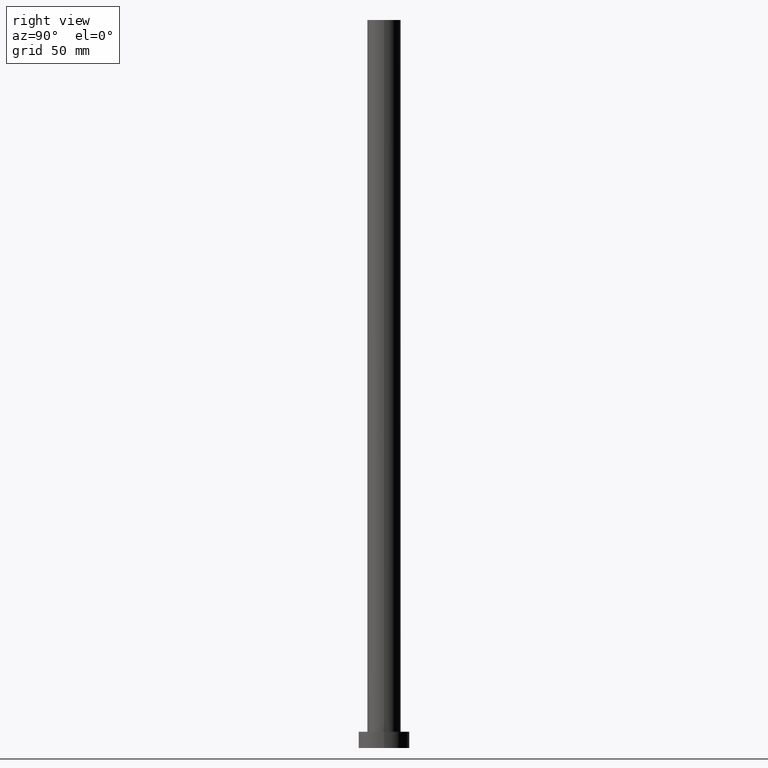
[diagram: clean part render]
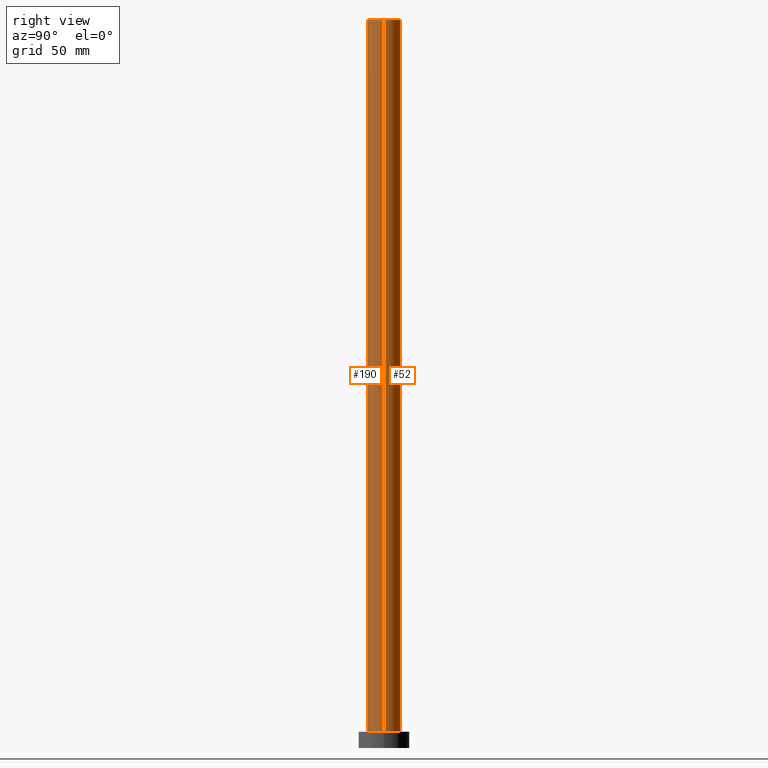
[diagram: same view with one multi-face feature highlighted, each face labeled with its STEP entity id]
A machine part, right view. The highlighted faces form ONE feature: a constant-radius fillet chain: 2 tangent blend faces with common blend radius 7.25 mm. The faces share edges in the B-rep.
Their STEP definitions:
[1] entity #190 (Cylinder):
#2 = DIRECTION ( 'NONE',  ( 1.000000000000000000, 0.000000000000000000, 0.000000000000000000 ) ) ;
#11 = CARTESIAN_POINT ( 'NONE',  ( 0.000000000000000000, 0.000000000000000000, 315.0000000000000000 ) ) ;
#15 = DIRECTION ( 'NONE',  ( -1.000000000000000000, 0.000000000000000000, 0.000000000000000000 ) ) ;
#19 = EDGE_LOOP ( 'NONE', ( #85, #180, #29, #255 ) ) ;
#21 = CARTESIAN_POINT ( 'NONE',  ( 0.000000000000000000, 0.000000000000000000, 7.000000000000000000 ) ) ;
#29 = ORIENTED_EDGE ( 'NONE', *, *, #237, .T. ) ;
#34 = CARTESIAN_POINT ( 'NONE',  ( 0.000000000000000000, 0.000000000000000000, 315.0000000000000000 ) ) ;
#50 = CIRCLE ( 'NONE', #140, 7.250000000000000000 ) ;
#51 = FACE_OUTER_BOUND ( 'NONE', #19, .T. ) ;
#55 = CARTESIAN_POINT ( 'NONE',  ( -7.250000000000000000, 0.000000000000000000, 7.000000000000000000 ) ) ;
#56 = DIRECTION ( 'NONE',  ( -0.000000000000000000, -0.000000000000000000, -1.000000000000000000 ) ) ;
#62 = CARTESIAN_POINT ( 'NONE',  ( -7.250000000000000000, 0.000000000000000000, 315.0000000000000000 ) ) ;
#68 = VERTEX_POINT ( 'NONE', #62 ) ;
#70 = CARTESIAN_POINT ( 'NONE',  ( 7.250000000000000000, 8.878689293818310074E-16, 7.000000000000000000 ) ) ;
#72 = DIRECTION ( 'NONE',  ( 1.000000000000000000, 0.000000000000000000, 0.000000000000000000 ) ) ;
#75 = DIRECTION ( 'NONE',  ( -0.000000000000000000, -0.000000000000000000, -1.000000000000000000 ) ) ;
#80 = EDGE_CURVE ( 'NONE', #216, #223, #234, .T. ) ;
#85 = ORIENTED_EDGE ( 'NONE', *, *, #115, .F. ) ;
#94 = CARTESIAN_POINT ( 'NONE',  ( 7.250000000000000000, 8.878689293818310074E-16, 315.0000000000000000 ) ) ;
#113 = VECTOR ( 'NONE', #56, 1000.000000000000000 ) ;
#115 = EDGE_CURVE ( 'NONE', #238, #223, #184, .T. ) ;
#125 = EDGE_CURVE ( 'NONE', #68, #238, #50, .T. ) ;
#135 = LINE ( 'NONE', #189, #113 ) ;
#140 = AXIS2_PLACEMENT_3D ( 'NONE', #11, #246, #72 ) ;
#160 = AXIS2_PLACEMENT_3D ( 'NONE', #34, #226, #15 ) ;
#180 = ORIENTED_EDGE ( 'NONE', *, *, #125, .F. ) ;
#181 = DIRECTION ( 'NONE',  ( 0.000000000000000000, 0.000000000000000000, 1.000000000000000000 ) ) ;
#184 = LINE ( 'NONE', #227, #230 ) ;
#189 = CARTESIAN_POINT ( 'NONE',  ( -7.250000000000000000, 0.000000000000000000, 315.0000000000000000 ) ) ;
#190 = ADVANCED_FACE ( 'NONE', ( #51 ), #192, .T. ) ;
#192 = CYLINDRICAL_SURFACE ( 'NONE', #160, 7.250000000000000000 ) ;
#216 = VERTEX_POINT ( 'NONE', #55 ) ;
#223 = VERTEX_POINT ( 'NONE', #70 ) ;
#226 = DIRECTION ( 'NONE',  ( -0.000000000000000000, -0.000000000000000000, -1.000000000000000000 ) ) ;
#227 = CARTESIAN_POINT ( 'NONE',  ( 7.250000000000000000, 8.878689293818310074E-16, 315.0000000000000000 ) ) ;
#230 = VECTOR ( 'NONE', #75, 1000.000000000000000 ) ;
#234 = CIRCLE ( 'NONE', #253, 7.250000000000000000 ) ;
#237 = EDGE_CURVE ( 'NONE', #68, #216, #135, .T. ) ;
#238 = VERTEX_POINT ( 'NONE', #94 ) ;
#246 = DIRECTION ( 'NONE',  ( 0.000000000000000000, 0.000000000000000000, 1.000000000000000000 ) ) ;
#253 = AXIS2_PLACEMENT_3D ( 'NONE', #21, #181, #2 ) ;
#255 = ORIENTED_EDGE ( 'NONE', *, *, #80, .T. ) ;
[2] entity #52 (Cylinder):
#4 = EDGE_LOOP ( 'NONE', ( #241, #104, #87, #199 ) ) ;
#14 = DIRECTION ( 'NONE',  ( 0.000000000000000000, 0.000000000000000000, 1.000000000000000000 ) ) ;
#24 = DIRECTION ( 'NONE',  ( -1.000000000000000000, 0.000000000000000000, 0.000000000000000000 ) ) ;
#30 = FACE_OUTER_BOUND ( 'NONE', #4, .T. ) ;
#32 = DIRECTION ( 'NONE',  ( 1.000000000000000000, 0.000000000000000000, 0.000000000000000000 ) ) ;
#44 = CARTESIAN_POINT ( 'NONE',  ( 0.000000000000000000, 0.000000000000000000, 315.0000000000000000 ) ) ;
#52 = ADVANCED_FACE ( 'NONE', ( #30 ), #129, .T. ) ;
#53 = DIRECTION ( 'NONE',  ( 1.000000000000000000, 0.000000000000000000, 0.000000000000000000 ) ) ;
#55 = CARTESIAN_POINT ( 'NONE',  ( -7.250000000000000000, 0.000000000000000000, 7.000000000000000000 ) ) ;
#56 = DIRECTION ( 'NONE',  ( -0.000000000000000000, -0.000000000000000000, -1.000000000000000000 ) ) ;
#62 = CARTESIAN_POINT ( 'NONE',  ( -7.250000000000000000, 0.000000000000000000, 315.0000000000000000 ) ) ;
#66 = CIRCLE ( 'NONE', #123, 7.250000000000000000 ) ;
#68 = VERTEX_POINT ( 'NONE', #62 ) ;
#69 = CARTESIAN_POINT ( 'NONE',  ( 0.000000000000000000, 0.000000000000000000, 7.000000000000000000 ) ) ;
#70 = CARTESIAN_POINT ( 'NONE',  ( 7.250000000000000000, 8.878689293818310074E-16, 7.000000000000000000 ) ) ;
#75 = DIRECTION ( 'NONE',  ( -0.000000000000000000, -0.000000000000000000, -1.000000000000000000 ) ) ;
#87 = ORIENTED_EDGE ( 'NONE', *, *, #134, .T. ) ;
#94 = CARTESIAN_POINT ( 'NONE',  ( 7.250000000000000000, 8.878689293818310074E-16, 315.0000000000000000 ) ) ;
#95 = AXIS2_PLACEMENT_3D ( 'NONE', #171, #114, #32 ) ;
#104 = ORIENTED_EDGE ( 'NONE', *, *, #115, .T. ) ;
#113 = VECTOR ( 'NONE', #56, 1000.000000000000000 ) ;
#114 = DIRECTION ( 'NONE',  ( 0.000000000000000000, 0.000000000000000000, 1.000000000000000000 ) ) ;
#115 = EDGE_CURVE ( 'NONE', #238, #223, #184, .T. ) ;
#123 = AXIS2_PLACEMENT_3D ( 'NONE', #69, #14, #53 ) ;
#129 = CYLINDRICAL_SURFACE ( 'NONE', #214, 7.250000000000000000 ) ;
#134 = EDGE_CURVE ( 'NONE', #223, #216, #66, .T. ) ;
#135 = LINE ( 'NONE', #189, #113 ) ;
#155 = CIRCLE ( 'NONE', #95, 7.250000000000000000 ) ;
#171 = CARTESIAN_POINT ( 'NONE',  ( 0.000000000000000000, 0.000000000000000000, 315.0000000000000000 ) ) ;
#184 = LINE ( 'NONE', #227, #230 ) ;
#189 = CARTESIAN_POINT ( 'NONE',  ( -7.250000000000000000, 0.000000000000000000, 315.0000000000000000 ) ) ;
#199 = ORIENTED_EDGE ( 'NONE', *, *, #237, .F. ) ;
#211 = EDGE_CURVE ( 'NONE', #238, #68, #155, .T. ) ;
#214 = AXIS2_PLACEMENT_3D ( 'NONE', #44, #221, #24 ) ;
#216 = VERTEX_POINT ( 'NONE', #55 ) ;
#221 = DIRECTION ( 'NONE',  ( -0.000000000000000000, -0.000000000000000000, -1.000000000000000000 ) ) ;
#223 = VERTEX_POINT ( 'NONE', #70 ) ;
#227 = CARTESIAN_POINT ( 'NONE',  ( 7.250000000000000000, 8.878689293818310074E-16, 315.0000000000000000 ) ) ;
#230 = VECTOR ( 'NONE', #75, 1000.000000000000000 ) ;
#237 = EDGE_CURVE ( 'NONE', #68, #216, #135, .T. ) ;
#238 = VERTEX_POINT ( 'NONE', #94 ) ;
#241 = ORIENTED_EDGE ( 'NONE', *, *, #211, .F. ) ;